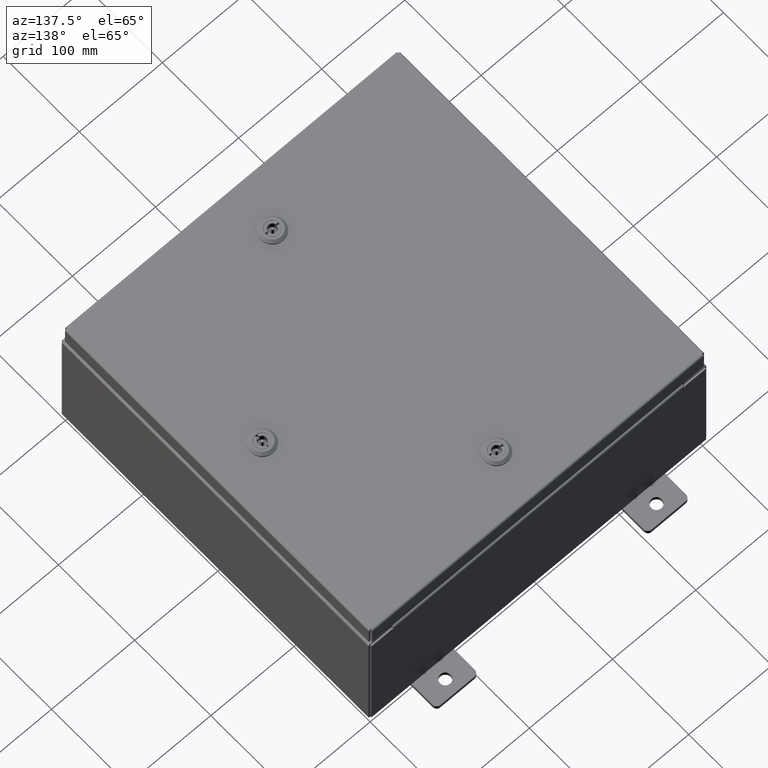
[diagram: clean part render]
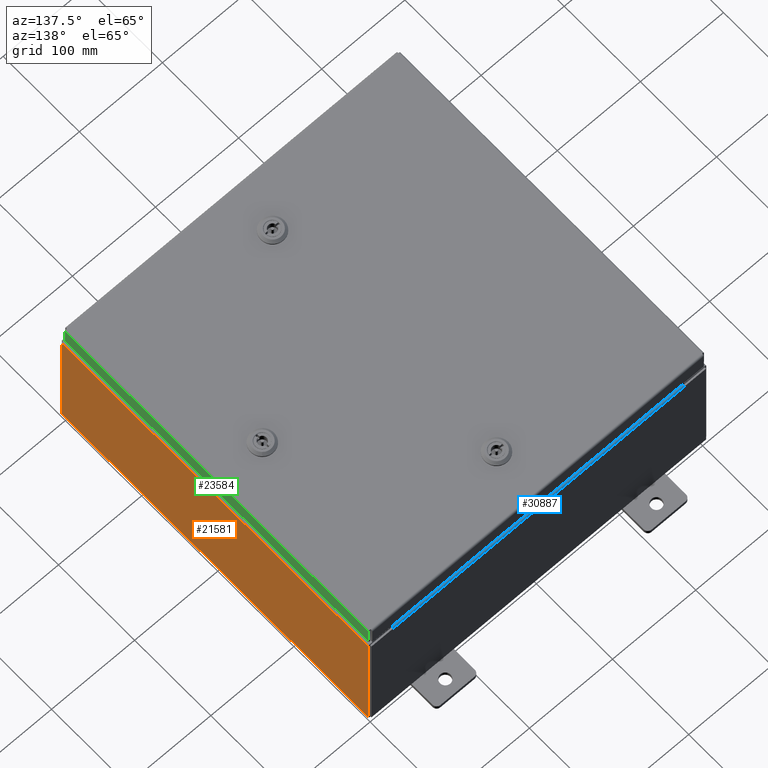
[diagram: same view with three faces highlighted in distinct colors, each labeled with its STEP entity id]
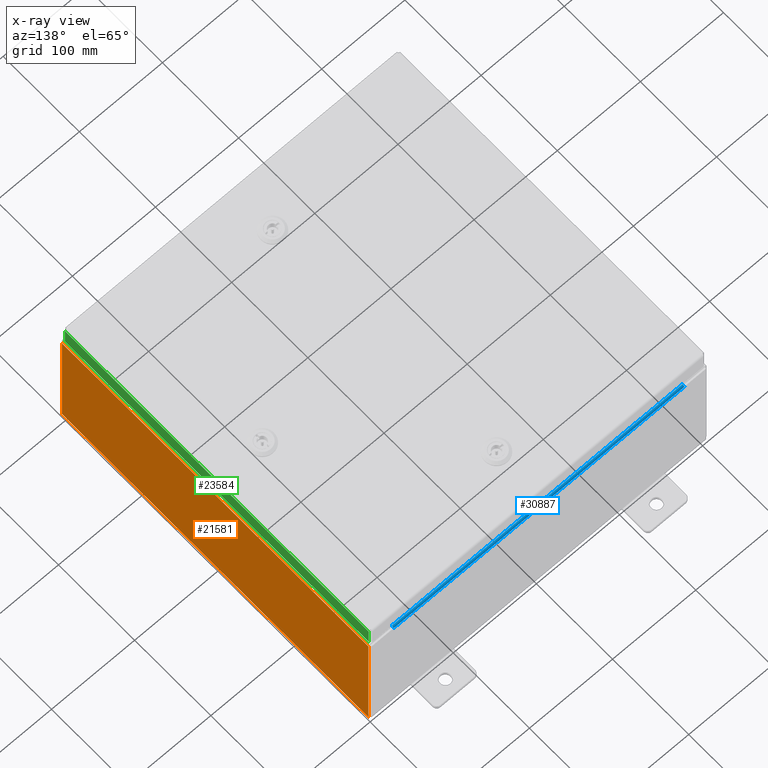
[diagram: x-ray of the same camera — body ghosted, the three highlighted faces saturated]
A machine part, auxiliary view with three faces highlighted in distinct colors.
The next image is the same camera in x-ray (body ghosted, the three faces saturated) — at least one of them is partly hidden behind the body in this view.
Their STEP definitions:

[orange] entity #21581 — the highlighted planar face has unit normal (-1, 0, 0).
#2216 = VECTOR ( 'NONE', #16304, 39.37007874015748100 ) ;
#3225 = AXIS2_PLACEMENT_3D ( 'NONE', #39695, #10721, #44588 ) ;
#3262 = CARTESIAN_POINT ( 'NONE',  ( 8.000000000000019500, 7.925300000000000000, 5.837600000000001000 ) ) ;
#7209 = EDGE_CURVE ( 'NONE', #47180, #23344, #59733, .T. ) ;
#8960 = ORIENTED_EDGE ( 'NONE', *, *, #43130, .T. ) ;
#10721 = DIRECTION ( 'NONE',  ( -1.000000000000000000, 0.0000000000000000000, 3.503965158194250900E-015 ) ) ;
#11337 = VECTOR ( 'NONE', #23473, 39.37007874015748100 ) ;
#15098 = LINE ( 'NONE', #59630, #2216 ) ;
#16304 = DIRECTION ( 'NONE',  ( -0.0000000000000000000, -1.000000000000000000, -0.0000000000000000000 ) ) ;
#20207 = VERTEX_POINT ( 'NONE', #47202 ) ;
#20542 = EDGE_CURVE ( 'NONE', #23344, #20207, #15098, .T. ) ;
#20698 = ORIENTED_EDGE ( 'NONE', *, *, #60764, .F. ) ;
#21581 = ADVANCED_FACE ( 'NONE', ( #40067 ), #58944, .F. ) ;
#23344 = VERTEX_POINT ( 'NONE', #3262 ) ;
#23473 = DIRECTION ( 'NONE',  ( -3.503965158194251300E-015, -1.844192188523290500E-016, -1.000000000000000000 ) ) ;
#24685 = ORIENTED_EDGE ( 'NONE', *, *, #20542, .T. ) ;
#25452 = DIRECTION ( 'NONE',  ( 3.503965158194251300E-015, 0.0000000000000000000, 1.000000000000000000 ) ) ;
#36818 = CARTESIAN_POINT ( 'NONE',  ( 7.999999999999999100, -7.925300000000000000, 0.01299999999999984700 ) ) ;
#38169 = VERTEX_POINT ( 'NONE', #57189 ) ;
#39387 = CARTESIAN_POINT ( 'NONE',  ( 7.999999999999999100, 7.925300000000000000, 0.01299999999999984700 ) ) ;
#39695 = CARTESIAN_POINT ( 'NONE',  ( 7.999999999999999100, 0.0000000000000000000, -2.829253492156558900E-014 ) ) ;
#40067 = FACE_OUTER_BOUND ( 'NONE', #51207, .T. ) ;
#43130 = EDGE_CURVE ( 'NONE', #20207, #38169, #48396, .T. ) ;
#44588 = DIRECTION ( 'NONE',  ( 3.503965158194250900E-015, 0.0000000000000000000, 1.000000000000000000 ) ) ;
#47180 = VERTEX_POINT ( 'NONE', #39387 ) ;
#47202 = CARTESIAN_POINT ( 'NONE',  ( 8.000000000000019500, -7.925300000000000000, 5.837600000000001000 ) ) ;
#48396 = LINE ( 'NONE', #52453, #11337 ) ;
#51024 = DIRECTION ( 'NONE',  ( -0.0000000000000000000, -1.000000000000000000, -0.0000000000000000000 ) ) ;
#51207 = EDGE_LOOP ( 'NONE', ( #24685, #8960, #20698, #54896 ) ) ;
#52453 = CARTESIAN_POINT ( 'NONE',  ( 7.999999999999999100, -7.925300000000000900, -2.683095728639522500E-014 ) ) ;
#54425 = CARTESIAN_POINT ( 'NONE',  ( 7.999999999999999100, 7.925299999999998200, -2.829253492156558900E-014 ) ) ;
#54896 = ORIENTED_EDGE ( 'NONE', *, *, #7209, .T. ) ;
#57189 = CARTESIAN_POINT ( 'NONE',  ( 7.999999999999999100, -7.925300000000000000, 0.01299999999999984500 ) ) ;
#58180 = VECTOR ( 'NONE', #25452, 39.37007874015748100 ) ;
#58944 = PLANE ( 'NONE',  #3225 ) ;
#59630 = CARTESIAN_POINT ( 'NONE',  ( 8.000000000000019500, 7.925300000000000000, 5.837600000000001000 ) ) ;
#59733 = LINE ( 'NONE', #54425, #58180 ) ;
#60149 = LINE ( 'NONE', #36818, #61652 ) ;
#60764 = EDGE_CURVE ( 'NONE', #47180, #38169, #60149, .T. ) ;
#61652 = VECTOR ( 'NONE', #51024, 39.37007874015748100 ) ;

[blue] entity #30887 — the highlighted cylindrical surface (edge-blend (fillet) strip) has radius 2.2276 mm, axis along (-1, -0, -0).
#427 = CARTESIAN_POINT ( 'NONE',  ( 6.887200000000000000, 0.0000000000000000000, 2.912300000000000600 ) ) ;
#1048 = DIRECTION ( 'NONE',  ( -1.000000000000000000, -0.0000000000000000000, -0.0000000000000000000 ) ) ;
#2670 = FACE_OUTER_BOUND ( 'NONE', #19335, .T. ) ;
#5278 = VERTEX_POINT ( 'NONE', #427 ) ;
#5893 = ORIENTED_EDGE ( 'NONE', *, *, #7282, .F. ) ;
#5923 = AXIS2_PLACEMENT_3D ( 'NONE', #20810, #54679, #25707 ) ;
#7282 = EDGE_CURVE ( 'NONE', #31310, #40264, #32465, .T. ) ;
#9285 = LINE ( 'NONE', #20983, #59248 ) ;
#10585 = AXIS2_PLACEMENT_3D ( 'NONE', #45045, #59403, #25607 ) ;
#10906 = CARTESIAN_POINT ( 'NONE',  ( 6.887200000000000000, -0.08769999999999993100, 3.000000000000000900 ) ) ;
#13097 = ORIENTED_EDGE ( 'NONE', *, *, #51963, .F. ) ;
#13185 = CIRCLE ( 'NONE', #61691, 0.08770000000000026400 ) ;
#16893 = EDGE_CURVE ( 'NONE', #5278, #31310, #46335, .T. ) ;
#19335 = EDGE_LOOP ( 'NONE', ( #55037, #13097, #5893, #54013 ) ) ;
#20810 = CARTESIAN_POINT ( 'NONE',  ( 6.887200000000000000, -0.08770000000000026400, 2.912300000000000600 ) ) ;
#20983 = CARTESIAN_POINT ( 'NONE',  ( -6.887200000000000000, -1.707404996040164500E-016, 2.912300000000000600 ) ) ;
#25607 = DIRECTION ( 'NONE',  ( 0.0000000000000000000, 3.309679011708404900E-015, 1.000000000000000000 ) ) ;
#25707 = DIRECTION ( 'NONE',  ( 0.0000000000000000000, -1.752183006198567300E-015, 1.000000000000000000 ) ) ;
#25869 = DIRECTION ( 'NONE',  ( 1.000000000000000000, 0.0000000000000000000, 0.0000000000000000000 ) ) ;
#29984 = CARTESIAN_POINT ( 'NONE',  ( -6.887199999999998200, -0.08770000000000026400, 2.912300000000000600 ) ) ;
#30465 = CARTESIAN_POINT ( 'NONE',  ( -6.887200000000000000, -0.08770000000000026400, 3.000000000000000900 ) ) ;
#30479 = CARTESIAN_POINT ( 'NONE',  ( 0.0000000000000000000, -0.08770000000000026400, 3.000000000000001300 ) ) ;
#30887 = ADVANCED_FACE ( 'NONE', ( #2670 ), #51118, .T. ) ;
#31310 = VERTEX_POINT ( 'NONE', #10906 ) ;
#32465 = LINE ( 'NONE', #30479, #43818 ) ;
#32781 = CARTESIAN_POINT ( 'NONE',  ( -6.887199999999998200, -1.707404996040164500E-016, 2.912300000000000600 ) ) ;
#34847 = DIRECTION ( 'NONE',  ( 0.0000000000000000000, 0.0000000000000000000, 1.000000000000000000 ) ) ;
#38582 = EDGE_CURVE ( 'NONE', #47752, #5278, #9285, .T. ) ;
#40264 = VERTEX_POINT ( 'NONE', #30465 ) ;
#43818 = VECTOR ( 'NONE', #45107, 39.37007874015748100 ) ;
#45045 = CARTESIAN_POINT ( 'NONE',  ( -6.887200000000000000, -0.08770000000000026400, 2.912300000000000600 ) ) ;
#45107 = DIRECTION ( 'NONE',  ( -1.000000000000000000, 0.0000000000000000000, 0.0000000000000000000 ) ) ;
#46335 = CIRCLE ( 'NONE', #5923, 0.08770000000000026400 ) ;
#47752 = VERTEX_POINT ( 'NONE', #32781 ) ;
#51118 = CYLINDRICAL_SURFACE ( 'NONE', #10585, 0.08770000000000026400 ) ;
#51963 = EDGE_CURVE ( 'NONE', #40264, #47752, #13185, .T. ) ;
#54013 = ORIENTED_EDGE ( 'NONE', *, *, #16893, .F. ) ;
#54679 = DIRECTION ( 'NONE',  ( 1.000000000000000000, 0.0000000000000000000, 0.0000000000000000000 ) ) ;
#55037 = ORIENTED_EDGE ( 'NONE', *, *, #38582, .F. ) ;
#59248 = VECTOR ( 'NONE', #25869, 39.37007874015748100 ) ;
#59403 = DIRECTION ( 'NONE',  ( -1.000000000000000000, -0.0000000000000000000, -0.0000000000000000000 ) ) ;
#61691 = AXIS2_PLACEMENT_3D ( 'NONE', #29984, #1048, #34847 ) ;

[green] entity #23584 — the highlighted planar face has unit normal (1, -0, -0.0015).
#3381 = EDGE_CURVE ( 'NONE', #54134, #34417, #35714, .T. ) ;
#4707 = PLANE ( 'NONE',  #35847 ) ;
#4774 = EDGE_CURVE ( 'NONE', #51183, #48879, #62142, .T. ) ;
#9367 = ORIENTED_EDGE ( 'NONE', *, *, #50676, .F. ) ;
#9561 = DIRECTION ( 'NONE',  ( 3.798629886902798700E-015, 0.0000000000000000000, -1.000000000000000000 ) ) ;
#10205 = DIRECTION ( 'NONE',  ( -3.798629886902798700E-015, -6.982962677686267500E-015, 1.000000000000000000 ) ) ;
#10670 = VECTOR ( 'NONE', #14590, 39.37007874015748100 ) ;
#14590 = DIRECTION ( 'NONE',  ( -3.798629886902798700E-015, -6.982962677686267500E-015, 1.000000000000000000 ) ) ;
#17306 = FACE_OUTER_BOUND ( 'NONE', #23143, .T. ) ;
#19418 = CARTESIAN_POINT ( 'NONE',  ( 7.937500000000000000, -7.848657864376269400, -0.07469999999999972500 ) ) ;
#19952 = CARTESIAN_POINT ( 'NONE',  ( 7.937500000000000000, 7.848657864376269400, 8.521932332017084000E-014 ) ) ;
#21048 = CARTESIAN_POINT ( 'NONE',  ( 7.937500000000000000, 0.0000000000000000000, -0.08769999999999997200 ) ) ;
#23143 = EDGE_LOOP ( 'NONE', ( #36595, #9367, #27368, #50691 ) ) ;
#23584 = ADVANCED_FACE ( 'NONE', ( #17306 ), #4707, .T. ) ;
#23976 = CARTESIAN_POINT ( 'NONE',  ( 7.937500000000000000, 0.0000000000000000000, 3.041243838330255000E-014 ) ) ;
#25936 = DIRECTION ( 'NONE',  ( 0.0000000000000000000, -1.000000000000000000, 0.0000000000000000000 ) ) ;
#27368 = ORIENTED_EDGE ( 'NONE', *, *, #3381, .T. ) ;
#28399 = EDGE_CURVE ( 'NONE', #34417, #48879, #50508, .T. ) ;
#34417 = VERTEX_POINT ( 'NONE', #35171 ) ;
#34653 = CARTESIAN_POINT ( 'NONE',  ( 7.937500000000003600, -7.848657864376263200, -0.9376999999999996400 ) ) ;
#35171 = CARTESIAN_POINT ( 'NONE',  ( 7.937500000000000000, 7.848657864376269400, -0.08769999999999997200 ) ) ;
#35714 = LINE ( 'NONE', #19952, #47097 ) ;
#35847 = AXIS2_PLACEMENT_3D ( 'NONE', #23976, #38544, #9561 ) ;
#36084 = VECTOR ( 'NONE', #25936, 39.37007874015748100 ) ;
#36595 = ORIENTED_EDGE ( 'NONE', *, *, #4774, .F. ) ;
#36681 = VECTOR ( 'NONE', #47737, 39.37007874015748100 ) ;
#38544 = DIRECTION ( 'NONE',  ( 1.000000000000000000, 0.0000000000000000000, 3.798629886902798700E-015 ) ) ;
#47097 = VECTOR ( 'NONE', #10205, 39.37007874015748100 ) ;
#47737 = DIRECTION ( 'NONE',  ( 0.0000000000000000000, -1.000000000000000000, 0.0000000000000000000 ) ) ;
#47760 = CARTESIAN_POINT ( 'NONE',  ( 7.937500000000003600, 7.848657864376275700, -0.9376999999999997600 ) ) ;
#48879 = VERTEX_POINT ( 'NONE', #54981 ) ;
#49575 = LINE ( 'NONE', #57469, #36681 ) ;
#50508 = LINE ( 'NONE', #21048, #36084 ) ;
#50676 = EDGE_CURVE ( 'NONE', #54134, #51183, #49575, .T. ) ;
#50691 = ORIENTED_EDGE ( 'NONE', *, *, #28399, .T. ) ;
#51183 = VERTEX_POINT ( 'NONE', #34653 ) ;
#54134 = VERTEX_POINT ( 'NONE', #47760 ) ;
#54981 = CARTESIAN_POINT ( 'NONE',  ( 7.937500000000000000, -7.848657864376269400, -0.08769999999999997200 ) ) ;
#57469 = CARTESIAN_POINT ( 'NONE',  ( 7.937500000000003600, -7.937500000000000000, -0.9376999999999997600 ) ) ;
#62142 = LINE ( 'NONE', #19418, #10670 ) ;